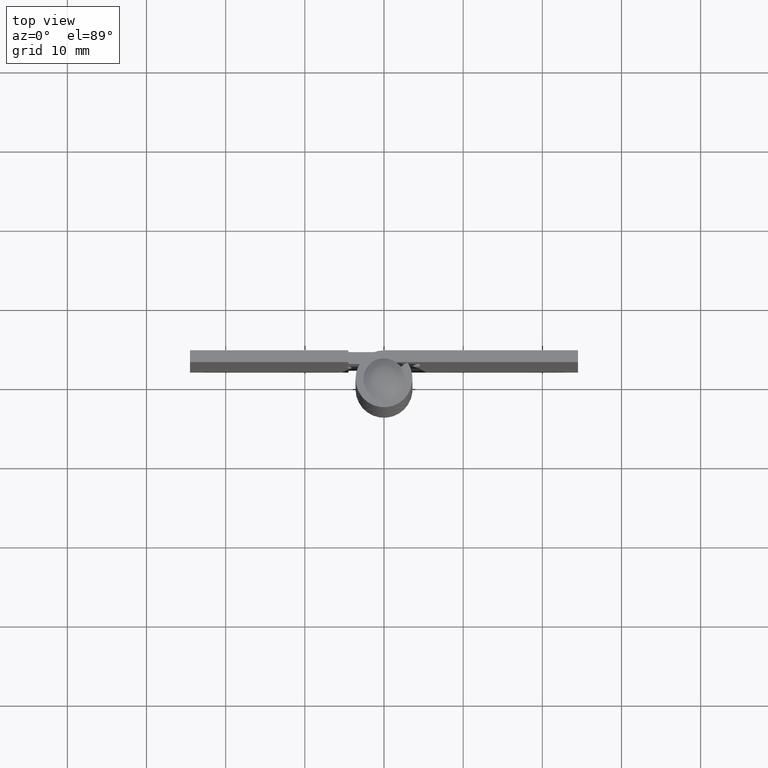
[diagram: clean part render]
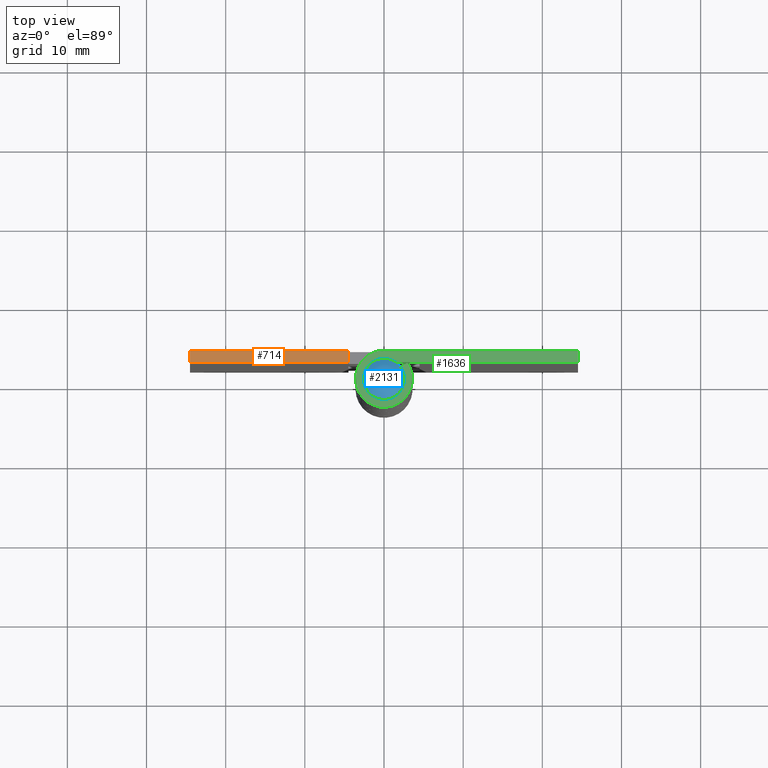
[diagram: same view with three faces highlighted in distinct colors, each labeled with its STEP entity id]
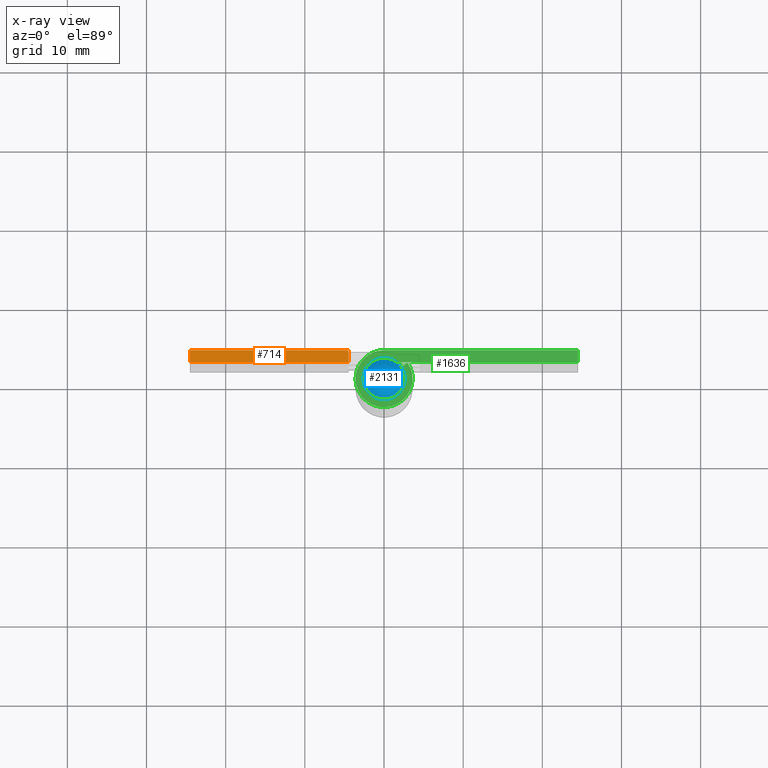
[diagram: x-ray of the same camera — body ghosted, the three highlighted faces saturated]
A machine part, top view with three faces highlighted in distinct colors.
The next image is the same camera in x-ray (body ghosted, the three faces saturated) — at least one of them is partly hidden behind the body in this view.
Their STEP definitions:

[orange] entity #714 — the highlighted face is a freeform B-spline surface patch.
#266=CARTESIAN_POINT('',(-4.499999999999900,2.099998000000045,76.0));
#267=VERTEX_POINT('',#266);
#275=CARTESIAN_POINT('',(-24.500000000000000,2.099998000000030,76.0));
#276=VERTEX_POINT('',#275);
#277=CARTESIAN_POINT('',(-24.500000000000000,2.099998000000030,76.0));
#278=CARTESIAN_POINT('',(-4.499999999999900,2.099998000000045,76.0));
#279=QUASI_UNIFORM_CURVE('',1,(#277,#278),.UNSPECIFIED.,.F.,.U.);
#280=EDGE_CURVE('',#276,#267,#279,.T.);
#350=CARTESIAN_POINT('',(-4.499999999999900,3.599998000000085,76.0));
#351=VERTEX_POINT('',#350);
#357=CARTESIAN_POINT('',(-4.499999999999900,2.099998000000045,76.0));
#358=CARTESIAN_POINT('',(-4.499999999999900,3.599998000000085,76.0));
#359=QUASI_UNIFORM_CURVE('',1,(#357,#358),.UNSPECIFIED.,.F.,.U.);
#360=EDGE_CURVE('',#267,#351,#359,.T.);
#635=CARTESIAN_POINT('',(-24.500000000000000,3.599998000000000,76.0));
#636=VERTEX_POINT('',#635);
#637=CARTESIAN_POINT('',(-24.500000000000000,3.599998000000000,76.0));
#638=CARTESIAN_POINT('',(-24.500000000000000,2.099998000000030,76.0));
#639=QUASI_UNIFORM_CURVE('',1,(#637,#638),.UNSPECIFIED.,.F.,.U.);
#640=EDGE_CURVE('',#636,#276,#639,.T.);
#699=CARTESIAN_POINT('',(-25.498999961236120,2.025073002907318,76.0));
#700=CARTESIAN_POINT('',(-3.500999502321974,2.025073002907318,76.0));
#701=CARTESIAN_POINT('',(-25.498999961236120,3.674923037325932,76.0));
#702=CARTESIAN_POINT('',(-3.500999502321974,3.674923037325932,76.0));
#703=B_SPLINE_SURFACE_WITH_KNOTS('',1,1,((#699,#701),(#700,#702)),.UNSPECIFIED.,.F.,.F.,.U.,(2,2),(2,2),(0.0,21.998000458914149),(0.041708334948495,0.958291687403247),.UNSPECIFIED.);
#704=ORIENTED_EDGE('',*,*,#360,.T.);
#705=CARTESIAN_POINT('',(-4.499999999999900,3.599998000000085,76.0));
#706=CARTESIAN_POINT('',(-24.500000000000000,3.599998000000000,76.0));
#707=QUASI_UNIFORM_CURVE('',1,(#705,#706),.UNSPECIFIED.,.F.,.U.);
#708=EDGE_CURVE('',#351,#636,#707,.T.);
#709=ORIENTED_EDGE('',*,*,#708,.T.);
#710=ORIENTED_EDGE('',*,*,#640,.T.);
#711=ORIENTED_EDGE('',*,*,#280,.T.);
#712=EDGE_LOOP('',(#704,#709,#710,#711));
#713=FACE_OUTER_BOUND('',#712,.T.);
#714=ADVANCED_FACE('',(#713),#703,.T.);

[blue] entity #2131 — the highlighted face is a freeform B-spline surface patch.
#2049=CARTESIAN_POINT('',(-2.600000000000000,0.0,76.0));
#2050=VERTEX_POINT('',#2049);
#2051=CARTESIAN_POINT('',(2.600000000000000,0.0,76.0));
#2052=VERTEX_POINT('',#2051);
#2053=CARTESIAN_POINT('',(-2.600000000000000,0.0,76.0));
#2054=CARTESIAN_POINT('',(-2.600043939536532,0.202065734495723,76.000000000000171));
#2055=CARTESIAN_POINT('',(-2.560096435897000,0.542360847706876,75.999999999999829));
#2056=CARTESIAN_POINT('',(-2.369732513231933,1.131215635266504,75.999999999999986));
#2057=CARTESIAN_POINT('',(-2.030691163604827,1.681439899067527,76.000000000000256));
#2058=CARTESIAN_POINT('',(-1.535192449055120,2.124859543157922,75.999999999999858));
#2059=CARTESIAN_POINT('',(-1.050256458069393,2.395625076231012,76.000000000000256));
#2060=CARTESIAN_POINT('',(-0.593606762697846,2.546460253091861,75.999999999999943));
#2061=CARTESIAN_POINT('',(-0.011834353980839,2.625587679905951,75.999999999999986));
#2062=CARTESIAN_POINT('',(0.619597124126101,2.559486603001536,76.000000000000014));
#2063=CARTESIAN_POINT('',(1.196650894328518,2.328612811212440,76.0));
#2064=CARTESIAN_POINT('',(1.615300840808158,2.052540758923789,76.000000000000071));
#2065=CARTESIAN_POINT('',(1.967284997223019,1.725612415304063,75.999999999999943));
#2066=CARTESIAN_POINT('',(2.236804376697465,1.352685539100572,76.000000000000057));
#2067=CARTESIAN_POINT('',(2.513888273764349,0.776194139299012,75.999999999999929));
#2068=CARTESIAN_POINT('',(2.600329534904799,0.329757064941830,75.999999999999829));
#2069=CARTESIAN_POINT('',(2.600000000000000,0.0,76.0));
#2070=B_SPLINE_CURVE_WITH_KNOTS('',3,(#2053,#2054,#2055,#2056,#2057,#2058,#2059,#2060,#2061,#2062,#2063,#2064,#2065,#2066,#2067,#2068,#2069),.UNSPECIFIED.,.F.,.U.,(4,1,1,1,1,1,1,1,1,1,1,1,1,1,4),(0.000000307573780,0.606187859666220,1.020992776437905,1.850603917464068,2.520670573021120,2.999271593857436,3.509781663987757,3.956518821795814,4.754105456474827,5.392262383428700,5.807067661125927,6.253776474330461,6.828122209031688,7.179106335920551,8.168192151040422),.UNSPECIFIED.);
#2071=EDGE_CURVE('',#2050,#2052,#2070,.T.);
#2073=CARTESIAN_POINT('',(2.600000000000000,0.0,76.0));
#2074=CARTESIAN_POINT('',(2.600167983137891,-0.276543414621202,76.0));
#2075=CARTESIAN_POINT('',(2.529736555181496,-0.712482025595120,75.999999999999915));
#2076=CARTESIAN_POINT('',(2.282159126655503,-1.280354694975772,76.000000000000114));
#2077=CARTESIAN_POINT('',(2.013594397271979,-1.666702240013589,75.999999999999773));
#2078=CARTESIAN_POINT('',(1.659150093064921,-2.021129786724232,76.000000000000398));
#2079=CARTESIAN_POINT('',(1.191530544419224,-2.342066786728423,75.999999999999801));
#2080=CARTESIAN_POINT('',(0.616294836306436,-2.551856298939765,76.000000000000085));
#2081=CARTESIAN_POINT('',(0.085190995316951,-2.610654882075360,76.000000000000057));
#2082=CARTESIAN_POINT('',(-0.372464785672588,-2.585360921205705,75.999999999999915));
#2083=CARTESIAN_POINT('',(-0.831245333525530,-2.482362914035548,76.000000000000114));
#2084=CARTESIAN_POINT('',(-1.347982120412530,-2.249528139938496,75.999999999999886));
#2085=CARTESIAN_POINT('',(-1.817046506857623,-1.892665037919570,76.000000000000171));
#2086=CARTESIAN_POINT('',(-2.183612368921803,-1.445952328160411,75.999999999999645));
#2087=CARTESIAN_POINT('',(-2.419839341178362,-0.990592373839364,76.000000000000668));
#2088=CARTESIAN_POINT('',(-2.565473860109362,-0.510478027327726,75.999999999998280));
#2089=CARTESIAN_POINT('',(-2.600024368083863,-0.180793064564885,76.000000000003453));
#2090=CARTESIAN_POINT('',(-2.600000000000000,0.0,76.0));
#2091=B_SPLINE_CURVE_WITH_KNOTS('',3,(#2073,#2074,#2075,#2076,#2077,#2078,#2079,#2080,#2081,#2082,#2083,#2084,#2085,#2086,#2087,#2088,#2089,#2090),.UNSPECIFIED.,.F.,.U.,(4,1,1,1,1,1,1,1,1,1,1,1,1,1,1,4),(0.000000307572067,0.829559642706244,1.308171674737005,1.850603917463060,2.233497749840834,2.807842983641402,3.541718667767222,4.052237252117761,4.403163449297695,4.913659302341864,5.456076376059456,6.094238438205448,6.668575671544639,7.179106335920513,7.625811902085411,8.168192151040421),.UNSPECIFIED.);
#2092=EDGE_CURVE('',#2052,#2050,#2091,.T.);
#2103=CARTESIAN_POINT('',(-2.417499569114288,-2.417499569114288,74.954609404386787));
#2104=CARTESIAN_POINT('',(-1.392233057992722,-2.784466115985438,75.822063738872373));
#2105=CARTESIAN_POINT('',(1.392233102435735,-2.784466115985438,75.822063738872373));
#2106=CARTESIAN_POINT('',(2.417499625944966,-2.417499548773276,74.954609356303692));
#2107=CARTESIAN_POINT('',(-2.784466115985438,-1.392233057992722,75.822063738872373));
#2108=CARTESIAN_POINT('',(-1.641389229675615,-1.641389229675614,77.0));
#2109=CARTESIAN_POINT('',(1.641389282072215,-1.641389229675614,77.0));
#2110=CARTESIAN_POINT('',(2.784466177886398,-1.392233044500184,75.822063675083697));
#2111=CARTESIAN_POINT('',(-2.784466115985438,1.392233102435735,75.822063738872373));
#2112=CARTESIAN_POINT('',(-1.641389229675615,1.641389282072216,77.0));
#2113=CARTESIAN_POINT('',(1.641389282072215,1.641389282072216,77.000000000000014));
#2114=CARTESIAN_POINT('',(2.784466177886398,1.392233088943198,75.822063675083697));
#2115=CARTESIAN_POINT('',(-2.417499548773273,2.417499625944963,74.954609356303635));
#2116=CARTESIAN_POINT('',(-1.392233044500184,2.784466177886398,75.822063675083697));
#2117=CARTESIAN_POINT('',(1.392233088943197,2.784466177886398,75.822063675083697));
#2118=CARTESIAN_POINT('',(2.417499605603951,2.417499605603951,74.954609308220526));
#2126=(BOUNDED_SURFACE()B_SPLINE_SURFACE(2,2,((#2103,#2107,#2111,#2115),(#2104,#2108,#2112,#2116),(#2105,#2109,#2113,#2117),(#2106,#2110,#2114,#2118)),.UNSPECIFIED.,.F.,.F.,.U.)B_SPLINE_SURFACE_WITH_KNOTS((3,1,3),(3,1,3),(0.0,3.013158699257839,6.026317494702072),(0.0,3.013158699257839,6.026317494702072),.UNSPECIFIED.)GEOMETRIC_REPRESENTATION_ITEM()RATIONAL_B_SPLINE_SURFACE(((1.357923079404704,1.178961539702352,1.178961539702352,1.357923090830366),(1.178961539702352,1.0,1.0,1.178961551128013),(1.178961539702352,1.0,1.0,1.178961551128013),(1.357923090830365,1.178961551128013,1.178961551128013,1.357923102256027)))REPRESENTATION_ITEM('')SURFACE());
#2127=ORIENTED_EDGE('',*,*,#2092,.F.);
#2128=ORIENTED_EDGE('',*,*,#2071,.F.);
#2129=EDGE_LOOP('',(#2127,#2128));
#2130=FACE_OUTER_BOUND('',#2129,.T.);
#2131=ADVANCED_FACE('',(#2130),#2126,.T.);

[green] entity #1636 — the highlighted face is a freeform B-spline surface patch.
#878=CARTESIAN_POINT('',(2.959308736849890,2.049998000000030,76.0));
#879=VERTEX_POINT('',#878);
#894=CARTESIAN_POINT('',(1.726263429829110,1.195832166666690,76.0));
#895=VERTEX_POINT('',#894);
#901=CARTESIAN_POINT('',(1.726263429829110,1.195832166666690,76.0));
#902=CARTESIAN_POINT('',(2.959308736849890,2.049998000000030,76.0));
#903=QUASI_UNIFORM_CURVE('',1,(#901,#902),.UNSPECIFIED.,.F.,.U.);
#904=EDGE_CURVE('',#895,#879,#903,.T.);
#963=CARTESIAN_POINT('',(0.002898274659664,2.099998000000030,76.0));
#964=VERTEX_POINT('',#963);
#970=CARTESIAN_POINT('',(1.726263429829110,1.195832166666690,76.0));
#971=CARTESIAN_POINT('',(1.858935975048611,1.004592666065927,76.000000000000227));
#972=CARTESIAN_POINT('',(2.003038035731175,0.697573385378012,75.999999999999773));
#973=CARTESIAN_POINT('',(2.101839363789017,0.211635978316669,76.000000000000156));
#974=CARTESIAN_POINT('',(2.108513094034426,-0.271490439216154,76.000000000000043));
#975=CARTESIAN_POINT('',(1.966580227631214,-0.812682640033141,75.999999999999616));
#976=CARTESIAN_POINT('',(1.703981945134020,-1.253458830359278,76.000000000000611));
#977=CARTESIAN_POINT('',(1.377493153594554,-1.607599038130196,75.999999999999972));
#978=CARTESIAN_POINT('',(1.016024150232048,-1.859047191855950,76.000000000000014));
#979=CARTESIAN_POINT('',(0.513824490704438,-2.059191576458845,75.999999999999787));
#980=CARTESIAN_POINT('',(0.046681101986714,-2.120214233558341,75.999999999999787));
#981=CARTESIAN_POINT('',(-0.417648929695364,-2.069215921532136,76.000000000000512));
#982=CARTESIAN_POINT('',(-0.824144463264557,-1.949829500543570,75.999999999998835));
#983=CARTESIAN_POINT('',(-1.196389165509884,-1.744551596911728,75.999999999999915));
#984=CARTESIAN_POINT('',(-1.550047382259908,-1.439463669377241,76.000000000000171));
#985=CARTESIAN_POINT('',(-1.870079492152716,-1.019804499669664,75.999999999999943));
#986=CARTESIAN_POINT('',(-2.057267508558191,-0.522999795080786,76.0));
#987=CARTESIAN_POINT('',(-2.115356509839403,-0.000712647317774,76.000000000000028));
#988=CARTESIAN_POINT('',(-2.075697179738605,0.407791357613333,76.000000000000071));
#989=CARTESIAN_POINT('',(-1.953082754284383,0.797652100822805,75.999999999999943));
#990=CARTESIAN_POINT('',(-1.767712087625329,1.161874737986798,75.999999999999972));
#991=CARTESIAN_POINT('',(-1.436502475134294,1.572776822309767,76.000000000000327));
#992=CARTESIAN_POINT('',(-0.998710228122215,1.873095949904936,75.999999999999105));
#993=CARTESIAN_POINT('',(-0.491661245992208,2.059109738982113,76.000000000002061));
#994=CARTESIAN_POINT('',(-0.186194866070742,2.100327457866711,75.999999999995893));
#995=CARTESIAN_POINT('',(0.002898274659664,2.099998000000030,76.0));
#996=B_SPLINE_CURVE_WITH_KNOTS('',3,(#970,#971,#972,#973,#974,#975,#976,#977,#978,#979,#980,#981,#982,#983,#984,#985,#986,#987,#988,#989,#990,#991,#992,#993,#994,#995),.UNSPECIFIED.,.F.,.U.,(4,1,1,1,1,1,1,1,1,1,1,1,1,1,1,1,1,1,1,1,1,1,1,4),(0.000000339567846,0.698192984422073,1.003674370380653,1.483699852376644,2.138277723362984,2.661967190305917,3.010990204223264,3.578308357730646,3.971062301092444,4.625646755218061,4.974774448624825,5.367531575687999,5.891119021151791,6.240246047948081,6.763906206882603,7.462121147178255,7.811253528795302,8.334896760374523,8.683957632638126,9.033084659573429,9.556744816819222,10.254959758382610,10.604092139576000,11.171357381253520),.UNSPECIFIED.);
#997=EDGE_CURVE('',#895,#964,#996,.T.);
#1152=CARTESIAN_POINT('',(24.500000000000000,2.099998000000030,76.0));
#1153=VERTEX_POINT('',#1152);
#1159=CARTESIAN_POINT('',(24.500000000000000,2.099998000000030,76.0));
#1160=CARTESIAN_POINT('',(0.002898274659664,2.099998000000030,76.0));
#1161=QUASI_UNIFORM_CURVE('',1,(#1159,#1160),.UNSPECIFIED.,.F.,.U.);
#1162=EDGE_CURVE('',#1153,#964,#1161,.T.);
#1238=CARTESIAN_POINT('',(0.003794732611929,3.599998000000085,76.0));
#1239=VERTEX_POINT('',#1238);
#1240=CARTESIAN_POINT('',(2.959308736849890,2.049998000000030,76.0));
#1241=CARTESIAN_POINT('',(3.122630642889250,1.814324681731552,76.000000000000028));
#1242=CARTESIAN_POINT('',(3.398405504054942,1.292583848737445,75.999999999999829));
#1243=CARTESIAN_POINT('',(3.621516302084304,0.389980023308593,76.000000000000142));
#1244=CARTESIAN_POINT('',(3.602030764671351,-0.465936745985931,75.999999999999986));
#1245=CARTESIAN_POINT('',(3.408985401111356,-1.217544515134010,75.999999999999829));
#1246=CARTESIAN_POINT('',(3.161990338463402,-1.751719180126730,76.000000000000384));
#1247=CARTESIAN_POINT('',(2.828953733795588,-2.250287595094577,75.999999999999446));
#1248=CARTESIAN_POINT('',(2.455526703257992,-2.655358527764628,76.000000000000270));
#1249=CARTESIAN_POINT('',(1.971587254139340,-3.030785986407130,76.000000000000171));
#1250=CARTESIAN_POINT('',(1.367095892535664,-3.360140278170218,75.999999999999886));
#1251=CARTESIAN_POINT('',(0.667936770656494,-3.565580854312701,75.999999999999858));
#1252=CARTESIAN_POINT('',(-0.043600299714244,-3.617391981281743,76.000000000001563));
#1253=CARTESIAN_POINT('',(-0.790612986137329,-3.543635100620462,75.999999999993520));
#1254=CARTESIAN_POINT('',(-1.566868167347787,-3.284641542067082,76.000000000013529));
#1255=CARTESIAN_POINT('',(-2.271709136502092,-2.826292272431798,75.999999999995055));
#1256=CARTESIAN_POINT('',(-2.723726270298691,-2.375202476800472,76.000000000001023));
#1257=CARTESIAN_POINT('',(-3.079693941991423,-1.892939818949427,76.000000000000369));
#1258=CARTESIAN_POINT('',(-3.403782230518069,-1.270693350369855,75.999999999998380));
#1259=CARTESIAN_POINT('',(-3.596982902262359,-0.501996431616404,76.000000000004732));
#1260=CARTESIAN_POINT('',(-3.610628069490081,0.274227956517740,75.999999999992895));
#1261=CARTESIAN_POINT('',(-3.477812675718366,1.051845425136305,76.000000000003453));
#1262=CARTESIAN_POINT('',(-3.181546228610921,1.746678510857437,75.999999999999076));
#1263=CARTESIAN_POINT('',(-2.781112246084194,2.305901479008682,76.000000000000085));
#1264=CARTESIAN_POINT('',(-2.399693742288805,2.701894027519117,76.000000000000028));
#1265=CARTESIAN_POINT('',(-1.982508599901679,3.021332709344216,76.0));
#1266=CARTESIAN_POINT('',(-1.478846582471849,3.298323726956208,76.000000000000014));
#1267=CARTESIAN_POINT('',(-0.831518555366727,3.532448519857056,75.999999999999972));
#1268=CARTESIAN_POINT('',(-0.307882201171406,3.600412148262803,76.000000000000014));
#1269=CARTESIAN_POINT('',(0.003794732611929,3.599998000000085,76.0));
#1270=B_SPLINE_CURVE_WITH_KNOTS('',3,(#1240,#1241,#1242,#1243,#1244,#1245,#1246,#1247,#1248,#1249,#1250,#1251,#1252,#1253,#1254,#1255,#1256,#1257,#1258,#1259,#1260,#1261,#1262,#1263,#1264,#1265,#1266,#1267,#1268,#1269),.UNSPECIFIED.,.F.,.U.,(4,1,1,1,1,1,1,1,1,1,1,1,1,1,1,1,1,1,1,1,1,1,1,1,1,1,1,4),(0.000000432418478,0.860195813636626,1.757852578118690,2.767706217586575,3.403530674989137,4.076755670588055,4.525581652475481,5.198741310328190,5.722379190444308,6.358202669584284,7.255853261107932,7.891678079742933,8.490124412243498,9.499958000742792,10.322722769625670,10.995966040350170,11.407392389242940,12.118023493390190,13.090463575566710,13.763703599959360,14.436875129168410,15.446708717650150,16.007738805549948,16.493968353886672,17.092401126646859,17.578630460307380,18.214453939458881,19.149466254177490),.UNSPECIFIED.);
#1271=EDGE_CURVE('',#879,#1239,#1270,.T.);
#1613=CARTESIAN_POINT('',(-5.003589254375789,-3.959600167582852,76.0));
#1614=CARTESIAN_POINT('',(25.903595428462200,-3.959600167582852,76.0));
#1615=CARTESIAN_POINT('',(-5.003589254375789,3.959636189597825,76.0));
#1616=CARTESIAN_POINT('',(25.903595428462200,3.959636189597825,76.0));
#1617=B_SPLINE_SURFACE_WITH_KNOTS('',1,1,((#1613,#1615),(#1614,#1616)),.UNSPECIFIED.,.F.,.F.,.U.,(2,2),(2,2),(0.0,30.907184682837990),(0.0,7.919236357180677),.UNSPECIFIED.);
#1618=ORIENTED_EDGE('',*,*,#1271,.F.);
#1619=ORIENTED_EDGE('',*,*,#904,.F.);
#1620=ORIENTED_EDGE('',*,*,#997,.T.);
#1621=ORIENTED_EDGE('',*,*,#1162,.F.);
#1622=CARTESIAN_POINT('',(24.500000000000000,3.599998000000085,76.0));
#1623=VERTEX_POINT('',#1622);
#1624=CARTESIAN_POINT('',(24.500000000000000,3.599998000000085,76.0));
#1625=CARTESIAN_POINT('',(24.500000000000000,2.099998000000030,76.0));
#1626=QUASI_UNIFORM_CURVE('',1,(#1624,#1625),.UNSPECIFIED.,.F.,.U.);
#1627=EDGE_CURVE('',#1623,#1153,#1626,.T.);
#1628=ORIENTED_EDGE('',*,*,#1627,.F.);
#1629=CARTESIAN_POINT('',(0.003794732611929,3.599998000000085,76.0));
#1630=CARTESIAN_POINT('',(24.500000000000000,3.599998000000085,76.0));
#1631=QUASI_UNIFORM_CURVE('',1,(#1629,#1630),.UNSPECIFIED.,.F.,.U.);
#1632=EDGE_CURVE('',#1239,#1623,#1631,.T.);
#1633=ORIENTED_EDGE('',*,*,#1632,.F.);
#1634=EDGE_LOOP('',(#1618,#1619,#1620,#1621,#1628,#1633));
#1635=FACE_OUTER_BOUND('',#1634,.T.);
#1636=ADVANCED_FACE('',(#1635),#1617,.T.);